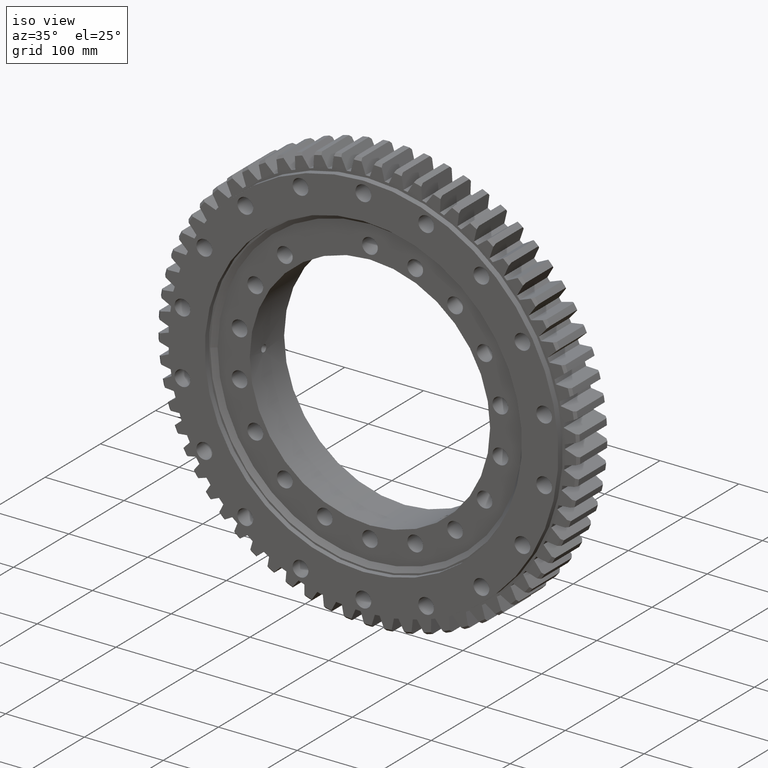
[diagram: clean part render]
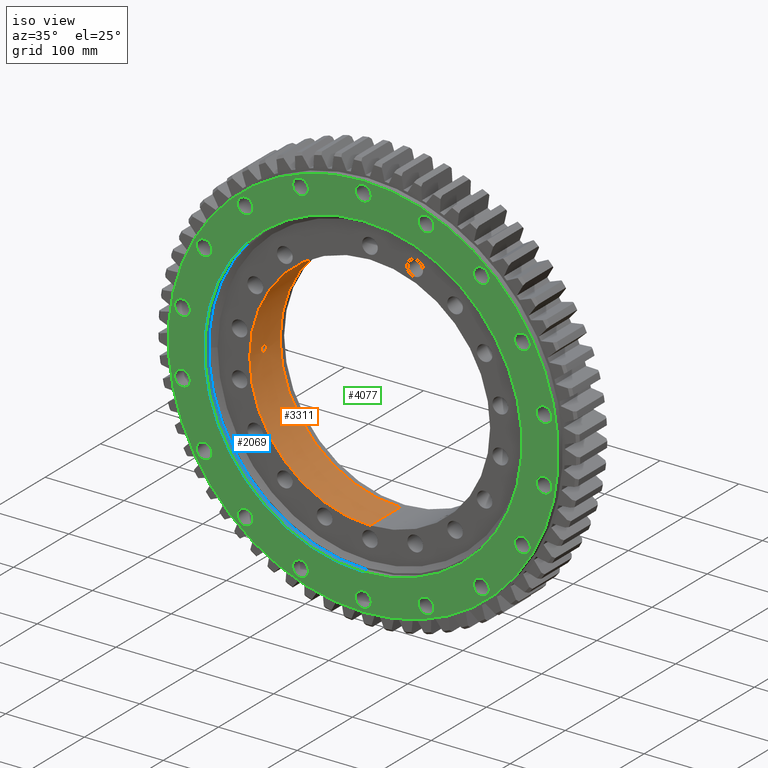
[diagram: same view with three faces highlighted in distinct colors, each labeled with its STEP entity id]
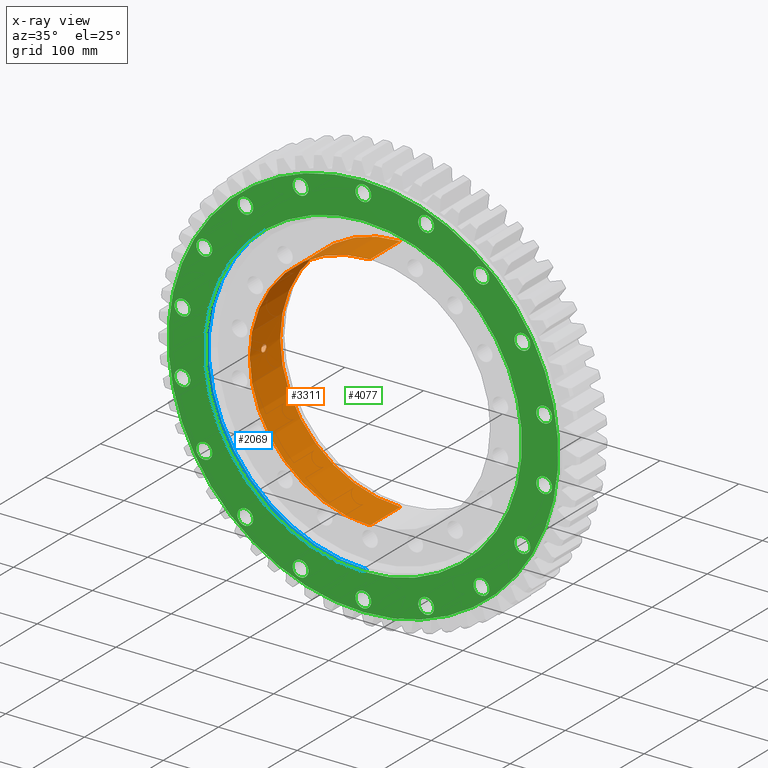
[diagram: x-ray of the same camera — body ghosted, the three highlighted faces saturated]
A machine part, iso view with three faces highlighted in distinct colors.
The next image is the same camera in x-ray (body ghosted, the three faces saturated) — at least one of them is partly hidden behind the body in this view.
Their STEP definitions:

[orange] entity #3311 — the highlighted cylindrical surface (partial cylindrical patch) has radius 152.5 mm, axis along (-0, 1, -0).
#205 = CARTESIAN_POINT ( 'NONE',  ( -152.4991463681368500, 4.471350611373478200, -0.5871406986109500800 ) ) ;
#276 = CARTESIAN_POINT ( 'NONE',  ( -152.4402366112303500, 1.449170517260515400, 4.270483248026321700 ) ) ;
#371 = CARTESIAN_POINT ( 'NONE',  ( -152.4582054614069500, -2.750386111445692400, -3.573883908414920500 ) ) ;
#427 = CARTESIAN_POINT ( 'NONE',  ( -152.4625123445400400, -2.976696863406556900, -3.387557135085292400 ) ) ;
#495 = CARTESIAN_POINT ( 'NONE',  ( -152.4933811505130200, -4.271301954763126600, -1.446783939584317200 ) ) ;
#813 = CARTESIAN_POINT ( 'NONE',  ( -152.4624238084217600, -2.972161365393607200, 3.391505917873999000 ) ) ;
#1213 = EDGE_CURVE ( 'NONE', #15459, #10234, #10272, .T. ) ;
#1268 = CARTESIAN_POINT ( 'NONE',  ( -152.4335920983297700, -0.2936365429435594500, 4.500000000001427300 ) ) ;
#1445 = CARTESIAN_POINT ( 'NONE',  ( 0.0000000000000000000, -25.50000000000001400, -1.507822983736319100E-016 ) ) ;
#1531 = VERTEX_POINT ( 'NONE', #6613 ) ;
#1634 = CARTESIAN_POINT ( 'NONE',  ( -152.4335920983297700, 2.328878195137327500E-009, 4.500000000001426400 ) ) ;
#1666 = CARTESIAN_POINT ( 'NONE',  ( -152.4999926309642400, -4.499750269149170200, 0.3005037219943778000 ) ) ;
#1697 = CARTESIAN_POINT ( 'NONE',  ( -152.5000030671672800, 4.500103945228436200, 0.2919261183107986800 ) ) ;
#1729 = CARTESIAN_POINT ( 'NONE',  ( -152.4958472268435800, -4.357368425672517800, -1.161569437411530200 ) ) ;
#1759 = CARTESIAN_POINT ( 'NONE',  ( -152.4344689300421900, 0.5919812696142561200, 4.470569588455800800 ) ) ;
#1862 = CARTESIAN_POINT ( 'NONE',  ( -152.5000072761718000, -4.500246579133802000, -0.2929773005388063300 ) ) ;
#1866 = DIRECTION ( 'NONE',  ( -0.0000000000000000000, 1.000000000000000000, -2.727064569436389400E-017 ) ) ;
#2042 = CARTESIAN_POINT ( 'NONE',  ( -152.4991198336882700, -4.470440428078159600, 0.5925920918783675900 ) ) ;
#2119 = DIRECTION ( 'NONE',  ( -0.0000000000000000000, 1.000000000000000000, -2.727064569436389400E-017 ) ) ;
#2196 = B_SPLINE_CURVE_WITH_KNOTS ( 'NONE', 3,
 ( #10019, #1268, #4221, #16235, #6021, #8161, #7487, #6582, #813, #3442, #12534, #3753, #11910, #18314, #9577, #2042, #1666, #1862, #7792, #1729, #495, #16858, #18003, #14899, #10683, #427, #371, #14965, #17890, #15022, #4797, #13580, #12096, #3320 ),
 .UNSPECIFIED., .F., .F.,
 ( 4, 2, 2, 2, 2, 2, 2, 2, 2, 2, 2, 2, 2, 2, 2, 2, 4 ),
 ( 0.01406981979965472500, 0.01494898441356953600, 0.01582814902748434800, 0.01670731364139915700, 0.01758647825531396700, 0.01846564286922877700, 0.01934480748314359000, 0.02022397209705839900, 0.02110313671097321200, 0.02198230132488802200, 0.02286146593880283200, 0.02374063055271764100, 0.02461979516663245400, 0.02549895978054726400, 0.02637812439446207700, 0.02725728900837688700, 0.02813645362229169600 ),
 .UNSPECIFIED. ) ;
#2485 = VECTOR ( 'NONE', #4945, 1000.000000000000000 ) ;
#2511 = CARTESIAN_POINT ( 'NONE',  ( -152.4335920983299100, 0.2973428317451584100, -4.499999999998539800 ) ) ;
#2899 = DIRECTION ( 'NONE',  ( 0.0000000000000000000, 2.275047181608927400E-017, 1.000000000000000000 ) ) ;
#3012 = CYLINDRICAL_SURFACE ( 'NONE', #7996, 152.5000000000000000 ) ;
#3157 = CARTESIAN_POINT ( 'NONE',  ( -152.4958059519746000, 4.355930588581143700, 1.167242638344313700 ) ) ;
#3223 = ORIENTED_EDGE ( 'NONE', *, *, #3663, .F. ) ;
#3305 = DIRECTION ( 'NONE',  ( 0.0000000000000000000, 0.0000000000000000000, 1.000000000000000000 ) ) ;
#3311 = ADVANCED_FACE ( 'NONE', ( #18558, #3465 ), #3012, .F. ) ;
#3320 = CARTESIAN_POINT ( 'NONE',  ( -152.4335920983298800, 2.328877396505309900E-009, -4.499999999998539800 ) ) ;
#3442 = CARTESIAN_POINT ( 'NONE',  ( -152.4710819855604900, -3.387316266409080300, 2.976935350708351400 ) ) ;
#3465 = FACE_OUTER_BOUND ( 'NONE', #13028, .T. ) ;
#3663 = EDGE_CURVE ( 'NONE', #15308, #8700, #2196, .T. ) ;
#3741 = CARTESIAN_POINT ( 'NONE',  ( 1.867586368699713500E-014, 29.49999999999997200, -152.5000000000000000 ) ) ;
#3753 = CARTESIAN_POINT ( 'NONE',  ( -152.4835029282025400, -3.904536432834663900, 2.256371344333844200 ) ) ;
#3933 = EDGE_LOOP ( 'NONE', ( #12758, #3223 ) ) ;
#4221 = CARTESIAN_POINT ( 'NONE',  ( -152.4344406030474200, -0.5854773802903791000, 4.471535469184562600 ) ) ;
#4647 = CARTESIAN_POINT ( 'NONE',  ( -152.4872245164826300, 4.045532425552232200, 1.992632940017228900 ) ) ;
#4797 = CARTESIAN_POINT ( 'NONE',  ( -152.4378321995201600, -1.173634041076803600, -4.354389357246622800 ) ) ;
#4945 = DIRECTION ( 'NONE',  ( -0.0000000000000000000, 1.000000000000000000, -2.727064569436389400E-017 ) ) ;
#5267 = CIRCLE ( 'NONE', #8544, 152.5000000000000000 ) ;
#5715 = B_SPLINE_CURVE_WITH_KNOTS ( 'NONE', 3,
 ( #12765, #2511, #6946, #17162, #8397, #18607, #15493, #6750, #16968, #8203, #18415, #9672, #7515, #17736, #8976, #205, #10460, #1697, #11944, #3157, #13427, #4647, #10401, #14861, #6113, #16328, #7580, #17793, #9038, #276, #10535, #1759, #12007, #1634 ),
 .UNSPECIFIED., .F., .F.,
 ( 4, 2, 2, 2, 2, 2, 2, 2, 2, 2, 2, 2, 2, 2, 2, 2, 4 ),
 ( 3.840739077915815100E-019, 0.0008793637374784217300, 0.001758727474956842600, 0.002638091212435263400, 0.003517454949913683900, 0.004396818687392104400, 0.005276182424870525800, 0.006155546162348947200, 0.007034909899827366900, 0.007914273637305787500, 0.008793637374784207100, 0.009673001112262626800, 0.01055236484974104500, 0.01143172858721946600, 0.01231109232469788600, 0.01319045606217630500, 0.01406981979965472500 ),
 .UNSPECIFIED. ) ;
#6021 = CARTESIAN_POINT ( 'NONE',  ( -152.4402473020581400, -1.449934536375633700, 4.270078292203028700 ) ) ;
#6101 = CARTESIAN_POINT ( 'NONE',  ( 0.0000000000000000000, 29.49999999999997200, -1.650667811563645600E-015 ) ) ;
#6113 = CARTESIAN_POINT ( 'NONE',  ( -152.4711991203924400, 3.392733562319130600, 2.971127550668597000 ) ) ;
#6481 = ORIENTED_EDGE ( 'NONE', *, *, #13990, .F. ) ;
#6582 = CARTESIAN_POINT ( 'NONE',  ( -152.4581150942963700, -2.745461392648008000, 3.577741484899487300 ) ) ;
#6613 = CARTESIAN_POINT ( 'NONE',  ( 0.0000000000000000000, -25.50000000000001100, 152.5000000000000000 ) ) ;
#6750 = CARTESIAN_POINT ( 'NONE',  ( -152.4580809401748800, 2.743401880858387100, -3.579140027295670400 ) ) ;
#6946 = CARTESIAN_POINT ( 'NONE',  ( -152.4344614895947200, 0.5897130801298982000, -4.470818854460795900 ) ) ;
#7378 = CIRCLE ( 'NONE', #12614, 152.5000000000000000 ) ;
#7469 = ORIENTED_EDGE ( 'NONE', *, *, #1213, .T. ) ;
#7487 = CARTESIAN_POINT ( 'NONE',  ( -152.4500367951045200, -2.252647105919821000, 3.906836752384194300 ) ) ;
#7515 = CARTESIAN_POINT ( 'NONE',  ( -152.4872133848707600, 4.045098719662562700, -1.993260217314738500 ) ) ;
#7556 = CARTESIAN_POINT ( 'NONE',  ( -152.4335920983298800, 2.328877396505309900E-009, -4.499999999998539800 ) ) ;
#7580 = CARTESIAN_POINT ( 'NONE',  ( -152.4581107054141900, 2.744976713661275300, 3.577855495823500500 ) ) ;
#7594 = EDGE_CURVE ( 'NONE', #17245, #10234, #5267, .T. ) ;
#7792 = CARTESIAN_POINT ( 'NONE',  ( -152.4991430332332200, -4.471226233845782400, -0.5865484807040894900 ) ) ;
#7996 = AXIS2_PLACEMENT_3D ( 'NONE', #16810, #2119, #9462 ) ;
#8161 = CARTESIAN_POINT ( 'NONE',  ( -152.4463602077788900, -1.991495228336237700, 4.045964104426626100 ) ) ;
#8203 = CARTESIAN_POINT ( 'NONE',  ( -152.4711439957412400, 3.390104877264848300, -2.973781563816476000 ) ) ;
#8397 = CARTESIAN_POINT ( 'NONE',  ( -152.4402517966541400, 1.450729198927594300, -4.269941704099050400 ) ) ;
#8544 = AXIS2_PLACEMENT_3D ( 'NONE', #6101, #12078, #3305 ) ;
#8700 = VERTEX_POINT ( 'NONE', #7556 ) ;
#8727 = LINE ( 'NONE', #13587, #12187 ) ;
#8976 = CARTESIAN_POINT ( 'NONE',  ( -152.4958030631115400, 4.355833461252584200, -1.168086189922329200 ) ) ;
#9038 = CARTESIAN_POINT ( 'NONE',  ( -152.4463970493678200, 1.994575252088862400, 4.044600341945468400 ) ) ;
#9462 = DIRECTION ( 'NONE',  ( 0.0000000000000000000, 2.275047181608927400E-017, 1.000000000000000000 ) ) ;
#9577 = CARTESIAN_POINT ( 'NONE',  ( -152.4957998956882900, -4.355717322981801600, 1.167788341766336600 ) ) ;
#9672 = CARTESIAN_POINT ( 'NONE',  ( -152.4835223025270400, 3.905331024335231000, -2.255206572043559500 ) ) ;
#9691 = ORIENTED_EDGE ( 'NONE', *, *, #7594, .F. ) ;
#10019 = CARTESIAN_POINT ( 'NONE',  ( -152.4335920983297700, 2.328878195137327500E-009, 4.500000000001426400 ) ) ;
#10120 = CARTESIAN_POINT ( 'NONE',  ( -152.4335920983297700, 2.328878195137327500E-009, 4.500000000001426400 ) ) ;
#10234 = VERTEX_POINT ( 'NONE', #3741 ) ;
#10272 = LINE ( 'NONE', #15171, #2485 ) ;
#10401 = CARTESIAN_POINT ( 'NONE',  ( -152.4835045791207300, 3.904573635158176800, 2.256169810011611900 ) ) ;
#10460 = CARTESIAN_POINT ( 'NONE',  ( -152.4999969160900000, 4.499895492040504800, -0.2951219021411824500 ) ) ;
#10535 = CARTESIAN_POINT ( 'NONE',  ( -152.4377989119800500, 1.168614980020482100, 4.355545120872621500 ) ) ;
#10644 = EDGE_CURVE ( 'NONE', #8700, #15308, #5715, .T. ) ;
#10683 = CARTESIAN_POINT ( 'NONE',  ( -152.4711811738319500, -3.391775692635567600, -2.971889164991660800 ) ) ;
#11681 = DIRECTION ( 'NONE',  ( -0.0000000000000000000, 1.000000000000000000, -2.727064569436389400E-017 ) ) ;
#11910 = CARTESIAN_POINT ( 'NONE',  ( -152.4871531609047100, -4.042849930973923200, 1.998034363940799800 ) ) ;
#11944 = CARTESIAN_POINT ( 'NONE',  ( -152.4991315384717700, 4.470840898411061000, 0.5900579047306082600 ) ) ;
#12007 = CARTESIAN_POINT ( 'NONE',  ( -152.4335920983297700, 0.2937030538668932700, 4.500000000001426400 ) ) ;
#12078 = DIRECTION ( 'NONE',  ( 0.0000000000000000000, -1.000000000000000000, 0.0000000000000000000 ) ) ;
#12096 = CARTESIAN_POINT ( 'NONE',  ( -152.4335920983298800, -0.2972754966287048900, -4.499999999998538900 ) ) ;
#12187 = VECTOR ( 'NONE', #1866, 1000.000000000000000 ) ;
#12534 = CARTESIAN_POINT ( 'NONE',  ( -152.4754767325176800, -3.577393507886717000, 2.745700655592425500 ) ) ;
#12614 = AXIS2_PLACEMENT_3D ( 'NONE', #1445, #11681, #2899 ) ;
#12758 = ORIENTED_EDGE ( 'NONE', *, *, #10644, .F. ) ;
#12765 = CARTESIAN_POINT ( 'NONE',  ( -152.4335920983298800, 2.328877396505309900E-009, -4.499999999998539800 ) ) ;
#12984 = ORIENTED_EDGE ( 'NONE', *, *, #13133, .F. ) ;
#13028 = EDGE_LOOP ( 'NONE', ( #12984, #7469, #9691, #6481 ) ) ;
#13133 = EDGE_CURVE ( 'NONE', #15459, #1531, #7378, .T. ) ;
#13427 = CARTESIAN_POINT ( 'NONE',  ( -152.4933709118018300, 4.270932440512647000, 1.447775787013437600 ) ) ;
#13572 = CARTESIAN_POINT ( 'NONE',  ( 0.0000000000000000000, 29.49999999999997200, 152.5000000000000000 ) ) ;
#13580 = CARTESIAN_POINT ( 'NONE',  ( -152.4344616028239400, -0.5914518736461035200, -4.470828583243702200 ) ) ;
#13587 = CARTESIAN_POINT ( 'NONE',  ( 0.0000000000000000000, 31.02910628019324700, 152.5000000000000000 ) ) ;
#13990 = EDGE_CURVE ( 'NONE', #1531, #17245, #8727, .T. ) ;
#14861 = CARTESIAN_POINT ( 'NONE',  ( -152.4755089395020200, 3.578736215521887600, 2.743837564830434500 ) ) ;
#14899 = CARTESIAN_POINT ( 'NONE',  ( -152.4755775612493400, -3.581659222133234200, -2.740078449097262500 ) ) ;
#14965 = CARTESIAN_POINT ( 'NONE',  ( -152.4501407050217400, -2.259560185670742800, -3.902775643369496000 ) ) ;
#15022 = CARTESIAN_POINT ( 'NONE',  ( -152.4403035892809700, -1.455813674671011700, -4.268078342830100300 ) ) ;
#15171 = CARTESIAN_POINT ( 'NONE',  ( 1.867586368699713500E-014, 31.02910628019324000, -152.5000000000000000 ) ) ;
#15308 = VERTEX_POINT ( 'NONE', #10120 ) ;
#15459 = VERTEX_POINT ( 'NONE', #17010 ) ;
#15493 = CARTESIAN_POINT ( 'NONE',  ( -152.4500628889480300, 2.254214887922842500, -3.905766563899336400 ) ) ;
#16235 = CARTESIAN_POINT ( 'NONE',  ( -152.4377718037980300, -1.165493158689383100, 4.356493878034664000 ) ) ;
#16328 = CARTESIAN_POINT ( 'NONE',  ( -152.4624317426921000, 2.972738250776522300, 3.391322343517714400 ) ) ;
#16810 = CARTESIAN_POINT ( 'NONE',  ( 0.0000000000000000000, 31.02910628019324300, -1.692367527159823000E-015 ) ) ;
#16858 = CARTESIAN_POINT ( 'NONE',  ( -152.4872262405751800, -4.045601589200859200, -1.992564161854958300 ) ) ;
#16968 = CARTESIAN_POINT ( 'NONE',  ( -152.4624791627376500, 2.974997841187748500, -3.389037578891976700 ) ) ;
#17010 = CARTESIAN_POINT ( 'NONE',  ( 1.867586368699713500E-014, -25.50000000000001800, -152.5000000000000000 ) ) ;
#17162 = CARTESIAN_POINT ( 'NONE',  ( -152.4377719518524300, 1.164916109338948600, -4.356484041880637600 ) ) ;
#17245 = VERTEX_POINT ( 'NONE', #13572 ) ;
#17736 = CARTESIAN_POINT ( 'NONE',  ( -152.4933307050521600, 4.269483257978975200, -1.451696475379878900 ) ) ;
#17793 = CARTESIAN_POINT ( 'NONE',  ( -152.4501138373444700, 2.257562028219685300, 3.903762389542614600 ) ) ;
#17890 = CARTESIAN_POINT ( 'NONE',  ( -152.4464336259754000, -1.997087964910179400, -4.043207372097604900 ) ) ;
#18003 = CARTESIAN_POINT ( 'NONE',  ( -152.4835800202039300, -3.907519152013141400, -2.251134550805897700 ) ) ;
#18314 = CARTESIAN_POINT ( 'NONE',  ( -152.4933116325325400, -4.268822917716244400, 1.453935273658863300 ) ) ;
#18415 = CARTESIAN_POINT ( 'NONE',  ( -152.4754518834358000, 3.576375774547096300, -2.747199193710094800 ) ) ;
#18558 = FACE_BOUND ( 'NONE', #3933, .T. ) ;
#18607 = CARTESIAN_POINT ( 'NONE',  ( -152.4464125410441700, 1.995731449381471500, -4.044016981852916400 ) ) ;

[blue] entity #2069 — the highlighted cylindrical surface (partial cylindrical patch) has radius 201.25 mm, axis along (-0, 1, -0).
#45 = VECTOR ( 'NONE', #8347, 1000.000000000000000 ) ;
#391 = CARTESIAN_POINT ( 'NONE',  ( 0.0000000000000000000, -37.50000000000001400, 0.0000000000000000000 ) ) ;
#1580 = CYLINDRICAL_SURFACE ( 'NONE', #18627, 201.2499999999999700 ) ;
#1718 = DIRECTION ( 'NONE',  ( -0.0000000000000000000, 1.000000000000000000, -0.0000000000000000000 ) ) ;
#1892 = DIRECTION ( 'NONE',  ( 0.0000000000000000000, 0.0000000000000000000, 1.000000000000000000 ) ) ;
#2027 = CIRCLE ( 'NONE', #12348, 201.2499999999999700 ) ;
#2069 = ADVANCED_FACE ( 'NONE', ( #7522 ), #1580, .F. ) ;
#2821 = VERTEX_POINT ( 'NONE', #8138 ) ;
#3072 = VERTEX_POINT ( 'NONE', #4499 ) ;
#3678 = CARTESIAN_POINT ( 'NONE',  ( 0.0000000000000000000, 22.16364734299516900, 201.2499999999999700 ) ) ;
#3707 = VECTOR ( 'NONE', #16744, 1000.000000000000000 ) ;
#4499 = CARTESIAN_POINT ( 'NONE',  ( 2.464601683284048000E-014, -37.50000000000001400, -201.2499999999999700 ) ) ;
#4950 = ORIENTED_EDGE ( 'NONE', *, *, #12732, .F. ) ;
#5133 = CARTESIAN_POINT ( 'NONE',  ( 0.0000000000000000000, -37.50000000000001400, 201.2499999999999700 ) ) ;
#5152 = ORIENTED_EDGE ( 'NONE', *, *, #17183, .T. ) ;
#5561 = CARTESIAN_POINT ( 'NONE',  ( 0.0000000000000000000, -30.54999999999999400, 201.2499999999999700 ) ) ;
#6561 = VERTEX_POINT ( 'NONE', #5133 ) ;
#7522 = FACE_OUTER_BOUND ( 'NONE', #12893, .T. ) ;
#7606 = LINE ( 'NONE', #12424, #3707 ) ;
#8138 = CARTESIAN_POINT ( 'NONE',  ( 2.464601683284048000E-014, -30.54999999999999400, -201.2499999999999700 ) ) ;
#8347 = DIRECTION ( 'NONE',  ( -0.0000000000000000000, 1.000000000000000000, -0.0000000000000000000 ) ) ;
#9173 = DIRECTION ( 'NONE',  ( -0.0000000000000000000, 1.000000000000000000, -0.0000000000000000000 ) ) ;
#9964 = ORIENTED_EDGE ( 'NONE', *, *, #13756, .T. ) ;
#10299 = EDGE_CURVE ( 'NONE', #3072, #6561, #16580, .T. ) ;
#10483 = CARTESIAN_POINT ( 'NONE',  ( 0.0000000000000000000, -30.54999999999999400, 0.0000000000000000000 ) ) ;
#11966 = DIRECTION ( 'NONE',  ( 0.0000000000000000000, 0.0000000000000000000, 1.000000000000000000 ) ) ;
#12348 = AXIS2_PLACEMENT_3D ( 'NONE', #10483, #1718, #11966 ) ;
#12424 = CARTESIAN_POINT ( 'NONE',  ( 2.464601683284048000E-014, 22.16364734299516900, -201.2499999999999700 ) ) ;
#12732 = EDGE_CURVE ( 'NONE', #6561, #15968, #15620, .T. ) ;
#12893 = EDGE_LOOP ( 'NONE', ( #15246, #9964, #5152, #4950 ) ) ;
#13756 = EDGE_CURVE ( 'NONE', #3072, #2821, #7606, .T. ) ;
#14988 = DIRECTION ( 'NONE',  ( 0.0000000000000000000, 0.0000000000000000000, 1.000000000000000000 ) ) ;
#15176 = DIRECTION ( 'NONE',  ( -0.0000000000000000000, 1.000000000000000000, -0.0000000000000000000 ) ) ;
#15246 = ORIENTED_EDGE ( 'NONE', *, *, #10299, .F. ) ;
#15255 = AXIS2_PLACEMENT_3D ( 'NONE', #391, #9173, #1892 ) ;
#15620 = LINE ( 'NONE', #3678, #45 ) ;
#15968 = VERTEX_POINT ( 'NONE', #5561 ) ;
#16580 = CIRCLE ( 'NONE', #15255, 201.2499999999999700 ) ;
#16744 = DIRECTION ( 'NONE',  ( -0.0000000000000000000, 1.000000000000000000, -0.0000000000000000000 ) ) ;
#17183 = EDGE_CURVE ( 'NONE', #2821, #15968, #2027, .T. ) ;
#18621 = CARTESIAN_POINT ( 'NONE',  ( 0.0000000000000000000, 22.16364734299516900, 0.0000000000000000000 ) ) ;
#18627 = AXIS2_PLACEMENT_3D ( 'NONE', #18621, #15176, #14988 ) ;

[green] entity #4077 — the highlighted planar face has unit normal (-0, 1, 0).
#70 = DIRECTION ( 'NONE',  ( 0.0000000000000000000, 1.000000000000000000, 0.0000000000000000000 ) ) ;
#144 = VERTEX_POINT ( 'NONE', #2115 ) ;
#169 = ORIENTED_EDGE ( 'NONE', *, *, #13476, .T. ) ;
#220 = ORIENTED_EDGE ( 'NONE', *, *, #17543, .T. ) ;
#226 = FACE_BOUND ( 'NONE', #14933, .T. ) ;
#281 = EDGE_CURVE ( 'NONE', #5196, #5061, #11923, .T. ) ;
#338 = ORIENTED_EDGE ( 'NONE', *, *, #9146, .T. ) ;
#344 = CARTESIAN_POINT ( 'NONE',  ( 0.0000000000000000000, -37.50000000000002100, 0.0000000000000000000 ) ) ;
#391 = CARTESIAN_POINT ( 'NONE',  ( 0.0000000000000000000, -37.50000000000001400, 0.0000000000000000000 ) ) ;
#406 = EDGE_LOOP ( 'NONE', ( #17452, #6726 ) ) ;
#543 = EDGE_LOOP ( 'NONE', ( #11882, #9933 ) ) ;
#610 = DIRECTION ( 'NONE',  ( 0.3420201433256569400, 0.0000000000000000000, 0.9396926207859125400 ) ) ;
#632 = CARTESIAN_POINT ( 'NONE',  ( 3.386180225106727400E-012, -37.50000000000002100, 243.0000000000000300 ) ) ;
#658 = EDGE_LOOP ( 'NONE', ( #3920, #16469 ) ) ;
#676 = DIRECTION ( 'NONE',  ( 0.0000000000000000000, 1.000000000000000000, 0.0000000000000000000 ) ) ;
#692 = FACE_BOUND ( 'NONE', #1474, .T. ) ;
#746 = DIRECTION ( 'NONE',  ( 0.0000000000000000000, 1.000000000000000000, 0.0000000000000000000 ) ) ;
#833 = CARTESIAN_POINT ( 'NONE',  ( 0.0000000000000000000, -37.50000000000002100, 0.0000000000000000000 ) ) ;
#840 = ORIENTED_EDGE ( 'NONE', *, *, #14440, .T. ) ;
#861 = CARTESIAN_POINT ( 'NONE',  ( 201.7839190817745700, -37.50000000000002100, 116.4999999999994500 ) ) ;
#908 = CARTESIAN_POINT ( 'NONE',  ( 79.69069339487929000, -37.50000000000002100, -228.9483806431172500 ) ) ;
#948 = AXIS2_PLACEMENT_3D ( 'NONE', #4795, #15146, #13642 ) ;
#962 = DIRECTION ( 'NONE',  ( -0.9848077530122073500, 0.0000000000000000000, -0.1736481776669344100 ) ) ;
#967 = DIRECTION ( 'NONE',  ( 0.9848077530122063500, 0.0000000000000000000, 0.1736481776669404600 ) ) ;
#1068 = DIRECTION ( 'NONE',  ( 0.0000000000000000000, 1.000000000000000000, 0.0000000000000000000 ) ) ;
#1090 = AXIS2_PLACEMENT_3D ( 'NONE', #16241, #6027, #4555 ) ;
#1098 = EDGE_CURVE ( 'NONE', #18507, #13229, #8661, .T. ) ;
#1113 = EDGE_CURVE ( 'NONE', #6541, #16841, #18490, .T. ) ;
#1122 = ORIENTED_EDGE ( 'NONE', *, *, #16927, .T. ) ;
#1207 = CARTESIAN_POINT ( 'NONE',  ( 149.7695130569625800, -37.50000000000002100, -188.4883552467228200 ) ) ;
#1209 = CIRCLE ( 'NONE', #18704, 9.999999999999969800 ) ;
#1284 = AXIS2_PLACEMENT_3D ( 'NONE', #15610, #6881, #17089 ) ;
#1302 = DIRECTION ( 'NONE',  ( 0.8660254037844430400, 0.0000000000000000000, -0.4999999999999925600 ) ) ;
#1331 = CIRCLE ( 'NONE', #10030, 9.999999999999964500 ) ;
#1379 = CARTESIAN_POINT ( 'NONE',  ( 149.7695130569625800, -37.50000000000002100, -178.4883552467228200 ) ) ;
#1423 = DIRECTION ( 'NONE',  ( -0.9848077530122086900, 0.0000000000000000000, 0.1736481776669271700 ) ) ;
#1474 = EDGE_LOOP ( 'NONE', ( #338, #16422 ) ) ;
#1532 = CARTESIAN_POINT ( 'NONE',  ( -149.7695130569613900, -37.50000000000002100, 188.4883552467238700 ) ) ;
#1539 = AXIS2_PLACEMENT_3D ( 'NONE', #7264, #18802, #13035 ) ;
#1665 = CARTESIAN_POINT ( 'NONE',  ( 149.7695130569625800, -37.50000000000002100, -168.4883552467228500 ) ) ;
#1696 = DIRECTION ( 'NONE',  ( 0.6427876096865450300, 0.0000000000000000000, -0.7660444431189733500 ) ) ;
#1701 = ORIENTED_EDGE ( 'NONE', *, *, #16894, .T. ) ;
#1805 = DIRECTION ( 'NONE',  ( 0.0000000000000000000, 1.000000000000000000, 0.0000000000000000000 ) ) ;
#1892 = DIRECTION ( 'NONE',  ( 0.0000000000000000000, 0.0000000000000000000, 1.000000000000000000 ) ) ;
#1942 = DIRECTION ( 'NONE',  ( 0.0000000000000000000, 0.0000000000000000000, 1.000000000000000000 ) ) ;
#1965 = CARTESIAN_POINT ( 'NONE',  ( -79.69069339488268600, -37.50000000000002100, -228.9483806431160500 ) ) ;
#1991 = EDGE_LOOP ( 'NONE', ( #3281, #15814 ) ) ;
#2099 = DIRECTION ( 'NONE',  ( 0.3420201433256756000, 0.0000000000000000000, -0.9396926207859058700 ) ) ;
#2115 = CARTESIAN_POINT ( 'NONE',  ( -149.7695130569653400, -37.50000000000002100, -188.4883552467204900 ) ) ;
#2161 = AXIS2_PLACEMENT_3D ( 'NONE', #833, #12185, #1942 ) ;
#2172 = CARTESIAN_POINT ( 'NONE',  ( 79.69069339487929000, -37.50000000000002100, -208.9483806431173000 ) ) ;
#2184 = CIRCLE ( 'NONE', #4385, 9.999999999999964500 ) ;
#2254 = EDGE_LOOP ( 'NONE', ( #4452, #16741 ) ) ;
#2261 = ORIENTED_EDGE ( 'NONE', *, *, #281, .T. ) ;
#2350 = CIRCLE ( 'NONE', #17905, 9.999999999999980500 ) ;
#2402 = CARTESIAN_POINT ( 'NONE',  ( -201.7839190817728100, -37.50000000000002100, 116.5000000000024700 ) ) ;
#2453 = AXIS2_PLACEMENT_3D ( 'NONE', #18453, #9701, #962 ) ;
#2466 = CARTESIAN_POINT ( 'NONE',  ( 229.4602064518443300, -37.50000000000002100, -50.46002539639584900 ) ) ;
#2477 = DIRECTION ( 'NONE',  ( 0.0000000000000000000, 1.000000000000000000, 0.0000000000000000000 ) ) ;
#2587 = VERTEX_POINT ( 'NONE', #1665 ) ;
#2615 = EDGE_CURVE ( 'NONE', #18159, #3925, #9664, .T. ) ;
#2640 = EDGE_LOOP ( 'NONE', ( #9825, #840 ) ) ;
#2650 = EDGE_CURVE ( 'NONE', #16461, #3473, #2350, .T. ) ;
#2652 = VERTEX_POINT ( 'NONE', #9209 ) ;
#2754 = FACE_BOUND ( 'NONE', #13966, .T. ) ;
#2844 = VERTEX_POINT ( 'NONE', #11605 ) ;
#2997 = CIRCLE ( 'NONE', #2453, 9.999999999999966200 ) ;
#3072 = VERTEX_POINT ( 'NONE', #4499 ) ;
#3154 = CARTESIAN_POINT ( 'NONE',  ( 149.7695130569625800, -37.50000000000002100, -178.4883552467228200 ) ) ;
#3155 = CIRCLE ( 'NONE', #12969, 9.999999999999969800 ) ;
#3206 = FACE_BOUND ( 'NONE', #10843, .T. ) ;
#3253 = CARTESIAN_POINT ( 'NONE',  ( 3.386180225106727400E-012, -37.50000000000002100, 233.0000000000000300 ) ) ;
#3281 = ORIENTED_EDGE ( 'NONE', *, *, #13712, .T. ) ;
#3473 = VERTEX_POINT ( 'NONE', #6993 ) ;
#3509 = CARTESIAN_POINT ( 'NONE',  ( 201.7839190817736300, -37.50000000000002100, -116.5000000000010800 ) ) ;
#3571 = CARTESIAN_POINT ( 'NONE',  ( 229.4602064518446700, -37.50000000000002100, 50.46002539639377500 ) ) ;
#3667 = FACE_BOUND ( 'NONE', #2254, .T. ) ;
#3685 = CARTESIAN_POINT ( 'NONE',  ( -79.69069339487781200, -37.50000000000002100, 218.9483806431177900 ) ) ;
#3762 = DIRECTION ( 'NONE',  ( 0.0000000000000000000, 1.000000000000000000, 0.0000000000000000000 ) ) ;
#3803 = CIRCLE ( 'NONE', #11721, 9.999999999999971600 ) ;
#3873 = DIRECTION ( 'NONE',  ( -0.8660254037844399300, 0.0000000000000000000, 0.4999999999999977800 ) ) ;
#3919 = CARTESIAN_POINT ( 'NONE',  ( -79.69069339487781200, -37.50000000000002100, 218.9483806431177900 ) ) ;
#3920 = ORIENTED_EDGE ( 'NONE', *, *, #8555, .T. ) ;
#3925 = VERTEX_POINT ( 'NONE', #5474 ) ;
#3981 = VERTEX_POINT ( 'NONE', #2466 ) ;
#4077 = ADVANCED_FACE ( 'NONE', ( #692, #11929, #4139, #4604, #226, #8016, #11471, #7567, #3667, #18747, #14883, #10991, #7118, #3206, #18289, #14444, #10555, #6656, #2754, #17841 ), #5296, .F. ) ;
#4126 = DIRECTION ( 'NONE',  ( 0.0000000000000000000, 1.000000000000000000, 0.0000000000000000000 ) ) ;
#4139 = FACE_BOUND ( 'NONE', #8142, .T. ) ;
#4264 = DIRECTION ( 'NONE',  ( 0.0000000000000000000, 1.000000000000000000, 0.0000000000000000000 ) ) ;
#4331 = CIRCLE ( 'NONE', #10739, 9.999999999999976900 ) ;
#4353 = ORIENTED_EDGE ( 'NONE', *, *, #9931, .T. ) ;
#4385 = AXIS2_PLACEMENT_3D ( 'NONE', #18794, #10062, #1302 ) ;
#4394 = DIRECTION ( 'NONE',  ( 0.0000000000000000000, 1.000000000000000000, 0.0000000000000000000 ) ) ;
#4452 = ORIENTED_EDGE ( 'NONE', *, *, #17854, .T. ) ;
#4499 = CARTESIAN_POINT ( 'NONE',  ( 2.464601683284048000E-014, -37.50000000000001400, -201.2499999999999700 ) ) ;
#4555 = DIRECTION ( 'NONE',  ( 0.9848077530122096900, 0.0000000000000000000, -0.1736481776669211200 ) ) ;
#4567 = ORIENTED_EDGE ( 'NONE', *, *, #5582, .T. ) ;
#4604 = FACE_BOUND ( 'NONE', #2640, .T. ) ;
#4686 = EDGE_LOOP ( 'NONE', ( #11023, #18039 ) ) ;
#4738 = DIRECTION ( 'NONE',  ( 0.0000000000000000000, 0.0000000000000000000, 1.000000000000000000 ) ) ;
#4792 = EDGE_CURVE ( 'NONE', #3473, #16461, #18947, .T. ) ;
#4795 = CARTESIAN_POINT ( 'NONE',  ( -149.7695130569653400, -37.50000000000002100, -178.4883552467205200 ) ) ;
#4877 = EDGE_CURVE ( 'NONE', #6487, #12103, #9358, .T. ) ;
#4919 = ORIENTED_EDGE ( 'NONE', *, *, #1113, .T. ) ;
#4955 = VERTEX_POINT ( 'NONE', #16411 ) ;
#4990 = DIRECTION ( 'NONE',  ( 0.8660254037844430400, 0.0000000000000000000, -0.4999999999999925600 ) ) ;
#5008 = AXIS2_PLACEMENT_3D ( 'NONE', #16307, #6086, #13400 ) ;
#5061 = VERTEX_POINT ( 'NONE', #17857 ) ;
#5085 = EDGE_CURVE ( 'NONE', #5061, #5196, #6623, .T. ) ;
#5110 = DIRECTION ( 'NONE',  ( 0.0000000000000000000, 1.000000000000000000, 0.0000000000000000000 ) ) ;
#5122 = AXIS2_PLACEMENT_3D ( 'NONE', #10418, #11894, #7471 ) ;
#5133 = CARTESIAN_POINT ( 'NONE',  ( 0.0000000000000000000, -37.50000000000001400, 201.2499999999999700 ) ) ;
#5196 = VERTEX_POINT ( 'NONE', #10803 ) ;
#5206 = AXIS2_PLACEMENT_3D ( 'NONE', #10584, #1068, #8371 ) ;
#5249 = VERTEX_POINT ( 'NONE', #18932 ) ;
#5268 = ORIENTED_EDGE ( 'NONE', *, *, #13179, .T. ) ;
#5296 = PLANE ( 'NONE',  #16099 ) ;
#5315 = CIRCLE ( 'NONE', #5008, 9.999999999999985800 ) ;
#5399 = CIRCLE ( 'NONE', #8396, 9.999999999999980500 ) ;
#5474 = CARTESIAN_POINT ( 'NONE',  ( 3.387404871905874600E-012, -37.50000000000002100, 223.0000000000000600 ) ) ;
#5582 = EDGE_CURVE ( 'NONE', #2587, #10926, #15739, .T. ) ;
#5598 = EDGE_CURVE ( 'NONE', #11692, #16621, #14830, .T. ) ;
#5609 = CARTESIAN_POINT ( 'NONE',  ( 229.4602064518446700, -37.50000000000002100, 30.46002539639381400 ) ) ;
#5752 = EDGE_CURVE ( 'NONE', #6162, #12059, #16873, .T. ) ;
#5832 = EDGE_LOOP ( 'NONE', ( #1122, #4919 ) ) ;
#5886 = DIRECTION ( 'NONE',  ( 0.3420201433256569400, 0.0000000000000000000, 0.9396926207859125400 ) ) ;
#5926 = DIRECTION ( 'NONE',  ( 0.0000000000000000000, 1.000000000000000000, 0.0000000000000000000 ) ) ;
#6027 = DIRECTION ( 'NONE',  ( 0.0000000000000000000, 1.000000000000000000, 0.0000000000000000000 ) ) ;
#6086 = DIRECTION ( 'NONE',  ( 0.0000000000000000000, 1.000000000000000000, 0.0000000000000000000 ) ) ;
#6100 = EDGE_CURVE ( 'NONE', #15341, #13489, #10349, .T. ) ;
#6124 = CIRCLE ( 'NONE', #18649, 201.2499999999999700 ) ;
#6162 = VERTEX_POINT ( 'NONE', #1965 ) ;
#6487 = VERTEX_POINT ( 'NONE', #18714 ) ;
#6511 = EDGE_CURVE ( 'NONE', #12103, #6487, #9638, .T. ) ;
#6541 = VERTEX_POINT ( 'NONE', #5609 ) ;
#6560 = AXIS2_PLACEMENT_3D ( 'NONE', #7123, #8573, #11138 ) ;
#6561 = VERTEX_POINT ( 'NONE', #5133 ) ;
#6623 = CIRCLE ( 'NONE', #9727, 9.999999999999982200 ) ;
#6656 = FACE_BOUND ( 'NONE', #1991, .T. ) ;
#6726 = ORIENTED_EDGE ( 'NONE', *, *, #4877, .T. ) ;
#6761 = CARTESIAN_POINT ( 'NONE',  ( 0.0000000000000000000, -37.50000000000002100, 201.2499999999999700 ) ) ;
#6881 = DIRECTION ( 'NONE',  ( 0.0000000000000000000, 1.000000000000000000, 0.0000000000000000000 ) ) ;
#6993 = CARTESIAN_POINT ( 'NONE',  ( -201.7839190817754200, -37.50000000000002100, -126.4999999999980200 ) ) ;
#7018 = EDGE_CURVE ( 'NONE', #16809, #14270, #13545, .T. ) ;
#7023 = CARTESIAN_POINT ( 'NONE',  ( 149.7695130569641200, -37.50000000000002100, 178.4883552467216000 ) ) ;
#7118 = FACE_BOUND ( 'NONE', #15602, .T. ) ;
#7123 = CARTESIAN_POINT ( 'NONE',  ( -229.4602064518449500, -37.50000000000002100, -40.46002539639229700 ) ) ;
#7206 = ORIENTED_EDGE ( 'NONE', *, *, #10184, .T. ) ;
#7264 = CARTESIAN_POINT ( 'NONE',  ( 149.7695130569641200, -37.50000000000002100, 178.4883552467216000 ) ) ;
#7284 = AXIS2_PLACEMENT_3D ( 'NONE', #3154, #746, #1696 ) ;
#7313 = CARTESIAN_POINT ( 'NONE',  ( -229.4602064518440700, -37.50000000000002100, 30.46002539639744100 ) ) ;
#7365 = ORIENTED_EDGE ( 'NONE', *, *, #7018, .T. ) ;
#7471 = DIRECTION ( 'NONE',  ( -0.9848077530122086900, 0.0000000000000000000, 0.1736481776669271700 ) ) ;
#7536 = DIRECTION ( 'NONE',  ( -0.0000000000000000000, 1.000000000000000000, -0.0000000000000000000 ) ) ;
#7567 = FACE_BOUND ( 'NONE', #18738, .T. ) ;
#7588 = AXIS2_PLACEMENT_3D ( 'NONE', #11263, #2477, #12735 ) ;
#7595 = CIRCLE ( 'NONE', #14211, 9.999999999999975100 ) ;
#7617 = DIRECTION ( 'NONE',  ( 0.0000000000000000000, 1.000000000000000000, 0.0000000000000000000 ) ) ;
#7733 = CARTESIAN_POINT ( 'NONE',  ( 201.7839190817745700, -37.50000000000002100, 106.4999999999994700 ) ) ;
#7904 = DIRECTION ( 'NONE',  ( 0.0000000000000000000, 1.000000000000000000, 0.0000000000000000000 ) ) ;
#7986 = CARTESIAN_POINT ( 'NONE',  ( -229.4602064518449500, -37.50000000000002100, -30.46002539639232200 ) ) ;
#8016 = FACE_BOUND ( 'NONE', #14587, .T. ) ;
#8024 = EDGE_CURVE ( 'NONE', #15351, #12076, #10520, .T. ) ;
#8142 = EDGE_LOOP ( 'NONE', ( #15604, #2261 ) ) ;
#8149 = DIRECTION ( 'NONE',  ( 0.0000000000000000000, 0.0000000000000000000, 1.000000000000000000 ) ) ;
#8258 = AXIS2_PLACEMENT_3D ( 'NONE', #9538, #1805, #5886 ) ;
#8262 = DIRECTION ( 'NONE',  ( -0.6427876096865405800, 0.0000000000000000000, 0.7660444431189769000 ) ) ;
#8371 = DIRECTION ( 'NONE',  ( -0.8660254037844361500, 0.0000000000000000000, -0.5000000000000042200 ) ) ;
#8396 = AXIS2_PLACEMENT_3D ( 'NONE', #16080, #4394, #17531 ) ;
#8472 = DIRECTION ( 'NONE',  ( 0.6427876096865299300, 0.0000000000000000000, 0.7660444431189857900 ) ) ;
#8555 = EDGE_CURVE ( 'NONE', #15856, #17907, #15287, .T. ) ;
#8573 = DIRECTION ( 'NONE',  ( 0.0000000000000000000, 1.000000000000000000, 0.0000000000000000000 ) ) ;
#8661 = CIRCLE ( 'NONE', #15065, 9.999999999999996400 ) ;
#8682 = DIRECTION ( 'NONE',  ( -0.8660254037844361500, 0.0000000000000000000, -0.5000000000000042200 ) ) ;
#8801 = EDGE_CURVE ( 'NONE', #9974, #2844, #1331, .T. ) ;
#8804 = AXIS2_PLACEMENT_3D ( 'NONE', #18124, #9380, #610 ) ;
#8835 = CARTESIAN_POINT ( 'NONE',  ( 229.4602064518443300, -37.50000000000002100, -40.46002539639587100 ) ) ;
#9040 = CARTESIAN_POINT ( 'NONE',  ( 201.7839190817745700, -37.50000000000002100, 126.4999999999994200 ) ) ;
#9121 = CIRCLE ( 'NONE', #9735, 9.999999999999982200 ) ;
#9146 = EDGE_CURVE ( 'NONE', #6561, #3072, #6124, .T. ) ;
#9173 = DIRECTION ( 'NONE',  ( -0.0000000000000000000, 1.000000000000000000, -0.0000000000000000000 ) ) ;
#9177 = CARTESIAN_POINT ( 'NONE',  ( -79.69069339488268600, -37.50000000000002100, -218.9483806431160500 ) ) ;
#9209 = CARTESIAN_POINT ( 'NONE',  ( 149.7695130569641200, -37.50000000000002100, 188.4883552467216000 ) ) ;
#9358 = CIRCLE ( 'NONE', #12082, 247.5000000000000000 ) ;
#9380 = DIRECTION ( 'NONE',  ( 0.0000000000000000000, 1.000000000000000000, 0.0000000000000000000 ) ) ;
#9440 = DIRECTION ( 'NONE',  ( 6.982962677686265100E-015, 0.0000000000000000000, -1.000000000000000000 ) ) ;
#9457 = EDGE_CURVE ( 'NONE', #12059, #6162, #16615, .T. ) ;
#9538 = CARTESIAN_POINT ( 'NONE',  ( 79.69069339488126500, -37.50000000000002100, 218.9483806431165600 ) ) ;
#9607 = CARTESIAN_POINT ( 'NONE',  ( -201.7839190817728100, -37.50000000000002100, 106.5000000000025000 ) ) ;
#9622 = DIRECTION ( 'NONE',  ( 0.0000000000000000000, 1.000000000000000000, 0.0000000000000000000 ) ) ;
#9638 = CIRCLE ( 'NONE', #2161, 247.5000000000000000 ) ;
#9640 = CIRCLE ( 'NONE', #1090, 9.999999999999971600 ) ;
#9664 = CIRCLE ( 'NONE', #12049, 9.999999999999980500 ) ;
#9701 = DIRECTION ( 'NONE',  ( 0.0000000000000000000, 1.000000000000000000, 0.0000000000000000000 ) ) ;
#9706 = DIRECTION ( 'NONE',  ( 0.0000000000000000000, 1.000000000000000000, 0.0000000000000000000 ) ) ;
#9727 = AXIS2_PLACEMENT_3D ( 'NONE', #3685, #15911, #14256 ) ;
#9735 = AXIS2_PLACEMENT_3D ( 'NONE', #12543, #3762, #14022 ) ;
#9820 = EDGE_LOOP ( 'NONE', ( #4567, #4353 ) ) ;
#9825 = ORIENTED_EDGE ( 'NONE', *, *, #5598, .T. ) ;
#9884 = EDGE_LOOP ( 'NONE', ( #14164, #10849 ) ) ;
#9931 = EDGE_CURVE ( 'NONE', #10926, #2587, #3803, .T. ) ;
#9933 = ORIENTED_EDGE ( 'NONE', *, *, #4792, .T. ) ;
#9974 = VERTEX_POINT ( 'NONE', #11499 ) ;
#10030 = AXIS2_PLACEMENT_3D ( 'NONE', #3509, #13766, #4990 ) ;
#10041 = EDGE_CURVE ( 'NONE', #2652, #5249, #10681, .T. ) ;
#10062 = DIRECTION ( 'NONE',  ( 0.0000000000000000000, 1.000000000000000000, 0.0000000000000000000 ) ) ;
#10173 = CARTESIAN_POINT ( 'NONE',  ( -201.7839190817754200, -37.50000000000002100, -116.4999999999980500 ) ) ;
#10183 = DIRECTION ( 'NONE',  ( 0.0000000000000000000, 1.000000000000000000, 0.0000000000000000000 ) ) ;
#10184 = EDGE_CURVE ( 'NONE', #3925, #18159, #5399, .T. ) ;
#10218 = EDGE_CURVE ( 'NONE', #13883, #14917, #16136, .T. ) ;
#10299 = EDGE_CURVE ( 'NONE', #3072, #6561, #16580, .T. ) ;
#10330 = DIRECTION ( 'NONE',  ( 0.0000000000000000000, 1.000000000000000000, 0.0000000000000000000 ) ) ;
#10337 = DIRECTION ( 'NONE',  ( 0.9848077530122096900, 0.0000000000000000000, -0.1736481776669211200 ) ) ;
#10349 = CIRCLE ( 'NONE', #6560, 9.999999999999966200 ) ;
#10418 = CARTESIAN_POINT ( 'NONE',  ( -229.4602064518440700, -37.50000000000002100, 40.46002539639742000 ) ) ;
#10520 = CIRCLE ( 'NONE', #17007, 9.999999999999975100 ) ;
#10555 = FACE_BOUND ( 'NONE', #658, .T. ) ;
#10584 = CARTESIAN_POINT ( 'NONE',  ( -201.7839190817754200, -37.50000000000002100, -116.4999999999980500 ) ) ;
#10593 = CIRCLE ( 'NONE', #7588, 9.999999999999996400 ) ;
#10612 = CARTESIAN_POINT ( 'NONE',  ( -229.4602064518440700, -37.50000000000002100, 50.46002539639739800 ) ) ;
#10681 = CIRCLE ( 'NONE', #1539, 9.999999999999989300 ) ;
#10739 = AXIS2_PLACEMENT_3D ( 'NONE', #18457, #9706, #967 ) ;
#10803 = CARTESIAN_POINT ( 'NONE',  ( -79.69069339487781200, -37.50000000000002100, 208.9483806431177900 ) ) ;
#10843 = EDGE_LOOP ( 'NONE', ( #12457, #1701 ) ) ;
#10849 = ORIENTED_EDGE ( 'NONE', *, *, #13392, .T. ) ;
#10918 = CARTESIAN_POINT ( 'NONE',  ( -1.759149921205826900E-012, -37.50000000000002100, -233.0000000000000300 ) ) ;
#10926 = VERTEX_POINT ( 'NONE', #1207 ) ;
#10973 = VERTEX_POINT ( 'NONE', #11378 ) ;
#10991 = FACE_BOUND ( 'NONE', #11261, .T. ) ;
#11020 = DIRECTION ( 'NONE',  ( 0.9848077530122063500, 0.0000000000000000000, 0.1736481776669404600 ) ) ;
#11023 = ORIENTED_EDGE ( 'NONE', *, *, #6100, .T. ) ;
#11138 = DIRECTION ( 'NONE',  ( -0.9848077530122073500, 0.0000000000000000000, -0.1736481776669344100 ) ) ;
#11151 = CARTESIAN_POINT ( 'NONE',  ( -79.69069339488268600, -37.50000000000002100, -208.9483806431160800 ) ) ;
#11261 = EDGE_LOOP ( 'NONE', ( #7365, #12077 ) ) ;
#11263 = CARTESIAN_POINT ( 'NONE',  ( -149.7695130569613900, -37.50000000000002100, 178.4883552467238700 ) ) ;
#11274 = DIRECTION ( 'NONE',  ( 0.0000000000000000000, 0.0000000000000000000, 1.000000000000000000 ) ) ;
#11351 = AXIS2_PLACEMENT_3D ( 'NONE', #861, #9622, #18370 ) ;
#11378 = CARTESIAN_POINT ( 'NONE',  ( -149.7695130569653400, -37.50000000000002100, -168.4883552467205400 ) ) ;
#11387 = AXIS2_PLACEMENT_3D ( 'NONE', #18907, #10183, #1423 ) ;
#11391 = CARTESIAN_POINT ( 'NONE',  ( 229.4602064518443300, -37.50000000000002100, -30.46002539639589200 ) ) ;
#11471 = FACE_BOUND ( 'NONE', #5832, .T. ) ;
#11499 = CARTESIAN_POINT ( 'NONE',  ( 201.7839190817736300, -37.50000000000002100, -126.5000000000010500 ) ) ;
#11543 = VERTEX_POINT ( 'NONE', #9607 ) ;
#11605 = CARTESIAN_POINT ( 'NONE',  ( 201.7839190817736300, -37.50000000000002100, -106.5000000000010900 ) ) ;
#11692 = VERTEX_POINT ( 'NONE', #17405 ) ;
#11721 = AXIS2_PLACEMENT_3D ( 'NONE', #1379, #15955, #18868 ) ;
#11732 = EDGE_LOOP ( 'NONE', ( #12101, #7206 ) ) ;
#11823 = DIRECTION ( 'NONE',  ( 6.982962677686265100E-015, 0.0000000000000000000, -1.000000000000000000 ) ) ;
#11847 = CARTESIAN_POINT ( 'NONE',  ( -229.4602064518449500, -37.50000000000002100, -50.46002539639227500 ) ) ;
#11882 = ORIENTED_EDGE ( 'NONE', *, *, #2650, .T. ) ;
#11894 = DIRECTION ( 'NONE',  ( 0.0000000000000000000, 1.000000000000000000, 0.0000000000000000000 ) ) ;
#11923 = CIRCLE ( 'NONE', #17144, 9.999999999999982200 ) ;
#11929 = FACE_BOUND ( 'NONE', #11732, .T. ) ;
#11949 = EDGE_CURVE ( 'NONE', #10973, #144, #18576, .T. ) ;
#12049 = AXIS2_PLACEMENT_3D ( 'NONE', #3253, #14963, #4738 ) ;
#12059 = VERTEX_POINT ( 'NONE', #11151 ) ;
#12076 = VERTEX_POINT ( 'NONE', #908 ) ;
#12077 = ORIENTED_EDGE ( 'NONE', *, *, #13407, .T. ) ;
#12082 = AXIS2_PLACEMENT_3D ( 'NONE', #344, #12210, #11274 ) ;
#12101 = ORIENTED_EDGE ( 'NONE', *, *, #2615, .T. ) ;
#12103 = VERTEX_POINT ( 'NONE', #17090 ) ;
#12185 = DIRECTION ( 'NONE',  ( 0.0000000000000000000, -1.000000000000000000, 0.0000000000000000000 ) ) ;
#12210 = DIRECTION ( 'NONE',  ( 0.0000000000000000000, -1.000000000000000000, 0.0000000000000000000 ) ) ;
#12289 = CARTESIAN_POINT ( 'NONE',  ( -1.759149921205826900E-012, -37.50000000000002100, -223.0000000000000600 ) ) ;
#12457 = ORIENTED_EDGE ( 'NONE', *, *, #11949, .T. ) ;
#12500 = DIRECTION ( 'NONE',  ( 0.0000000000000000000, 1.000000000000000000, 0.0000000000000000000 ) ) ;
#12541 = EDGE_CURVE ( 'NONE', #17907, #15856, #14047, .T. ) ;
#12543 = CARTESIAN_POINT ( 'NONE',  ( -149.7695130569653400, -37.50000000000002100, -178.4883552467205200 ) ) ;
#12584 = DIRECTION ( 'NONE',  ( -0.0000000000000000000, 1.000000000000000000, 0.0000000000000000000 ) ) ;
#12658 = DIRECTION ( 'NONE',  ( 0.0000000000000000000, 1.000000000000000000, 0.0000000000000000000 ) ) ;
#12735 = DIRECTION ( 'NONE',  ( -0.6427876096865405800, 0.0000000000000000000, 0.7660444431189769000 ) ) ;
#12866 = ORIENTED_EDGE ( 'NONE', *, *, #10218, .T. ) ;
#12911 = CARTESIAN_POINT ( 'NONE',  ( 79.69069339487929000, -37.50000000000002100, -218.9483806431172800 ) ) ;
#12969 = AXIS2_PLACEMENT_3D ( 'NONE', #2402, #12658, #3873 ) ;
#12988 = ORIENTED_EDGE ( 'NONE', *, *, #13521, .T. ) ;
#13023 = CIRCLE ( 'NONE', #18798, 9.999999999999989300 ) ;
#13035 = DIRECTION ( 'NONE',  ( 0.6427876096865299300, 0.0000000000000000000, 0.7660444431189857900 ) ) ;
#13144 = ORIENTED_EDGE ( 'NONE', *, *, #13821, .T. ) ;
#13179 = EDGE_CURVE ( 'NONE', #3981, #14185, #15603, .T. ) ;
#13229 = VERTEX_POINT ( 'NONE', #18620 ) ;
#13345 = ORIENTED_EDGE ( 'NONE', *, *, #9457, .T. ) ;
#13392 = EDGE_CURVE ( 'NONE', #12076, #15351, #7595, .T. ) ;
#13400 = DIRECTION ( 'NONE',  ( 0.8660254037844330500, 0.0000000000000000000, 0.5000000000000095500 ) ) ;
#13407 = EDGE_CURVE ( 'NONE', #14270, #16809, #14915, .T. ) ;
#13476 = EDGE_CURVE ( 'NONE', #14185, #3981, #9640, .T. ) ;
#13482 = CARTESIAN_POINT ( 'NONE',  ( 229.4602064518446700, -37.50000000000002100, 40.46002539639379600 ) ) ;
#13489 = VERTEX_POINT ( 'NONE', #11847 ) ;
#13521 = EDGE_CURVE ( 'NONE', #14917, #13883, #5315, .T. ) ;
#13545 = CIRCLE ( 'NONE', #18438, 9.999999999999980500 ) ;
#13642 = DIRECTION ( 'NONE',  ( -0.6427876096865359200, 0.0000000000000000000, -0.7660444431189809000 ) ) ;
#13712 = EDGE_CURVE ( 'NONE', #4955, #11543, #1209, .T. ) ;
#13766 = DIRECTION ( 'NONE',  ( 0.0000000000000000000, 1.000000000000000000, 0.0000000000000000000 ) ) ;
#13821 = EDGE_CURVE ( 'NONE', #13229, #18507, #10593, .T. ) ;
#13883 = VERTEX_POINT ( 'NONE', #7733 ) ;
#13886 = CARTESIAN_POINT ( 'NONE',  ( -201.7839190817728100, -37.50000000000002100, 116.5000000000024700 ) ) ;
#13966 = EDGE_LOOP ( 'NONE', ( #15068, #13144 ) ) ;
#13972 = DIRECTION ( 'NONE',  ( -0.3420201433256698200, 0.0000000000000000000, 0.9396926207859080900 ) ) ;
#14022 = DIRECTION ( 'NONE',  ( -0.6427876096865359200, 0.0000000000000000000, -0.7660444431189809000 ) ) ;
#14047 = CIRCLE ( 'NONE', #5122, 9.999999999999982200 ) ;
#14164 = ORIENTED_EDGE ( 'NONE', *, *, #8024, .T. ) ;
#14185 = VERTEX_POINT ( 'NONE', #11391 ) ;
#14211 = AXIS2_PLACEMENT_3D ( 'NONE', #18121, #7904, #2099 ) ;
#14256 = DIRECTION ( 'NONE',  ( -0.3420201433256698200, 0.0000000000000000000, 0.9396926207859080900 ) ) ;
#14270 = VERTEX_POINT ( 'NONE', #18830 ) ;
#14440 = EDGE_CURVE ( 'NONE', #16621, #11692, #14903, .T. ) ;
#14444 = FACE_BOUND ( 'NONE', #4686, .T. ) ;
#14587 = EDGE_LOOP ( 'NONE', ( #12988, #12866 ) ) ;
#14830 = CIRCLE ( 'NONE', #8258, 9.999999999999992900 ) ;
#14883 = FACE_BOUND ( 'NONE', #9884, .T. ) ;
#14903 = CIRCLE ( 'NONE', #8804, 9.999999999999992900 ) ;
#14915 = CIRCLE ( 'NONE', #17142, 9.999999999999980500 ) ;
#14917 = VERTEX_POINT ( 'NONE', #9040 ) ;
#14933 = EDGE_LOOP ( 'NONE', ( #16554, #220 ) ) ;
#14963 = DIRECTION ( 'NONE',  ( 0.0000000000000000000, 1.000000000000000000, 0.0000000000000000000 ) ) ;
#15065 = AXIS2_PLACEMENT_3D ( 'NONE', #18537, #10330, #8262 ) ;
#15068 = ORIENTED_EDGE ( 'NONE', *, *, #1098, .T. ) ;
#15146 = DIRECTION ( 'NONE',  ( 0.0000000000000000000, 1.000000000000000000, 0.0000000000000000000 ) ) ;
#15255 = AXIS2_PLACEMENT_3D ( 'NONE', #391, #9173, #1892 ) ;
#15287 = CIRCLE ( 'NONE', #11387, 9.999999999999982200 ) ;
#15335 = DIRECTION ( 'NONE',  ( -0.8660254037844399300, 0.0000000000000000000, 0.4999999999999977800 ) ) ;
#15341 = VERTEX_POINT ( 'NONE', #7986 ) ;
#15351 = VERTEX_POINT ( 'NONE', #2172 ) ;
#15419 = EDGE_CURVE ( 'NONE', #13489, #15341, #2997, .T. ) ;
#15602 = EDGE_LOOP ( 'NONE', ( #13345, #17906 ) ) ;
#15603 = CIRCLE ( 'NONE', #18458, 9.999999999999971600 ) ;
#15604 = ORIENTED_EDGE ( 'NONE', *, *, #5085, .T. ) ;
#15610 = CARTESIAN_POINT ( 'NONE',  ( -79.69069339488268600, -37.50000000000002100, -218.9483806431160500 ) ) ;
#15739 = CIRCLE ( 'NONE', #7284, 9.999999999999971600 ) ;
#15814 = ORIENTED_EDGE ( 'NONE', *, *, #17450, .T. ) ;
#15856 = VERTEX_POINT ( 'NONE', #10612 ) ;
#15911 = DIRECTION ( 'NONE',  ( 0.0000000000000000000, 1.000000000000000000, 0.0000000000000000000 ) ) ;
#15955 = DIRECTION ( 'NONE',  ( 0.0000000000000000000, 1.000000000000000000, 0.0000000000000000000 ) ) ;
#16080 = CARTESIAN_POINT ( 'NONE',  ( 3.386180225106727400E-012, -37.50000000000002100, 233.0000000000000300 ) ) ;
#16099 = AXIS2_PLACEMENT_3D ( 'NONE', #6761, #12584, #8149 ) ;
#16136 = CIRCLE ( 'NONE', #11351, 9.999999999999985800 ) ;
#16241 = CARTESIAN_POINT ( 'NONE',  ( 229.4602064518443300, -37.50000000000002100, -40.46002539639587100 ) ) ;
#16291 = CARTESIAN_POINT ( 'NONE',  ( 0.0000000000000000000, -37.50000000000001400, 0.0000000000000000000 ) ) ;
#16307 = CARTESIAN_POINT ( 'NONE',  ( 201.7839190817745700, -37.50000000000002100, 116.4999999999994500 ) ) ;
#16339 = DIRECTION ( 'NONE',  ( 0.3420201433256756000, 0.0000000000000000000, -0.9396926207859058700 ) ) ;
#16366 = CARTESIAN_POINT ( 'NONE',  ( -1.759149921205826900E-012, -37.50000000000002100, -233.0000000000000300 ) ) ;
#16411 = CARTESIAN_POINT ( 'NONE',  ( -201.7839190817728100, -37.50000000000002100, 126.5000000000024400 ) ) ;
#16422 = ORIENTED_EDGE ( 'NONE', *, *, #10299, .T. ) ;
#16461 = VERTEX_POINT ( 'NONE', #18479 ) ;
#16469 = ORIENTED_EDGE ( 'NONE', *, *, #12541, .T. ) ;
#16554 = ORIENTED_EDGE ( 'NONE', *, *, #10041, .T. ) ;
#16580 = CIRCLE ( 'NONE', #15255, 201.2499999999999700 ) ;
#16615 = CIRCLE ( 'NONE', #1284, 9.999999999999984000 ) ;
#16621 = VERTEX_POINT ( 'NONE', #18910 ) ;
#16741 = ORIENTED_EDGE ( 'NONE', *, *, #8801, .T. ) ;
#16809 = VERTEX_POINT ( 'NONE', #12289 ) ;
#16841 = VERTEX_POINT ( 'NONE', #3571 ) ;
#16873 = CIRCLE ( 'NONE', #17080, 9.999999999999984000 ) ;
#16894 = EDGE_CURVE ( 'NONE', #144, #10973, #9121, .T. ) ;
#16927 = EDGE_CURVE ( 'NONE', #16841, #6541, #4331, .T. ) ;
#17007 = AXIS2_PLACEMENT_3D ( 'NONE', #12911, #4126, #16339 ) ;
#17027 = AXIS2_PLACEMENT_3D ( 'NONE', #13482, #4264, #11020 ) ;
#17080 = AXIS2_PLACEMENT_3D ( 'NONE', #9177, #5926, #18524 ) ;
#17089 = DIRECTION ( 'NONE',  ( -0.3420201433256628300, 0.0000000000000000000, -0.9396926207859105400 ) ) ;
#17090 = CARTESIAN_POINT ( 'NONE',  ( 0.0000000000000000000, -37.50000000000002100, 247.5000000000000000 ) ) ;
#17142 = AXIS2_PLACEMENT_3D ( 'NONE', #10918, #676, #9440 ) ;
#17144 = AXIS2_PLACEMENT_3D ( 'NONE', #3919, #12500, #13972 ) ;
#17230 = DIRECTION ( 'NONE',  ( 0.0000000000000000000, 1.000000000000000000, 0.0000000000000000000 ) ) ;
#17405 = CARTESIAN_POINT ( 'NONE',  ( 79.69069339488126500, -37.50000000000002100, 228.9483806431165400 ) ) ;
#17450 = EDGE_CURVE ( 'NONE', #11543, #4955, #3155, .T. ) ;
#17452 = ORIENTED_EDGE ( 'NONE', *, *, #6511, .T. ) ;
#17531 = DIRECTION ( 'NONE',  ( 0.0000000000000000000, 0.0000000000000000000, 1.000000000000000000 ) ) ;
#17543 = EDGE_CURVE ( 'NONE', #5249, #2652, #13023, .T. ) ;
#17749 = DIRECTION ( 'NONE',  ( 0.0000000000000000000, 0.0000000000000000000, 1.000000000000000000 ) ) ;
#17841 = FACE_OUTER_BOUND ( 'NONE', #406, .T. ) ;
#17854 = EDGE_CURVE ( 'NONE', #2844, #9974, #2184, .T. ) ;
#17857 = CARTESIAN_POINT ( 'NONE',  ( -79.69069339487781200, -37.50000000000002100, 228.9483806431177600 ) ) ;
#17905 = AXIS2_PLACEMENT_3D ( 'NONE', #10173, #18897, #8682 ) ;
#17906 = ORIENTED_EDGE ( 'NONE', *, *, #5752, .T. ) ;
#17907 = VERTEX_POINT ( 'NONE', #7313 ) ;
#18039 = ORIENTED_EDGE ( 'NONE', *, *, #15419, .T. ) ;
#18121 = CARTESIAN_POINT ( 'NONE',  ( 79.69069339487929000, -37.50000000000002100, -218.9483806431172800 ) ) ;
#18124 = CARTESIAN_POINT ( 'NONE',  ( 79.69069339488126500, -37.50000000000002100, 218.9483806431165600 ) ) ;
#18159 = VERTEX_POINT ( 'NONE', #632 ) ;
#18289 = FACE_BOUND ( 'NONE', #543, .T. ) ;
#18370 = DIRECTION ( 'NONE',  ( 0.8660254037844330500, 0.0000000000000000000, 0.5000000000000095500 ) ) ;
#18438 = AXIS2_PLACEMENT_3D ( 'NONE', #16366, #7617, #11823 ) ;
#18453 = CARTESIAN_POINT ( 'NONE',  ( -229.4602064518449500, -37.50000000000002100, -40.46002539639229700 ) ) ;
#18457 = CARTESIAN_POINT ( 'NONE',  ( 229.4602064518446700, -37.50000000000002100, 40.46002539639379600 ) ) ;
#18458 = AXIS2_PLACEMENT_3D ( 'NONE', #8835, #70, #10337 ) ;
#18479 = CARTESIAN_POINT ( 'NONE',  ( -201.7839190817754200, -37.50000000000002100, -106.4999999999980700 ) ) ;
#18490 = CIRCLE ( 'NONE', #17027, 9.999999999999976900 ) ;
#18507 = VERTEX_POINT ( 'NONE', #1532 ) ;
#18524 = DIRECTION ( 'NONE',  ( -0.3420201433256628300, 0.0000000000000000000, -0.9396926207859105400 ) ) ;
#18537 = CARTESIAN_POINT ( 'NONE',  ( -149.7695130569613900, -37.50000000000002100, 178.4883552467238700 ) ) ;
#18576 = CIRCLE ( 'NONE', #948, 9.999999999999982200 ) ;
#18620 = CARTESIAN_POINT ( 'NONE',  ( -149.7695130569613900, -37.50000000000002100, 168.4883552467239000 ) ) ;
#18649 = AXIS2_PLACEMENT_3D ( 'NONE', #16291, #7536, #17749 ) ;
#18704 = AXIS2_PLACEMENT_3D ( 'NONE', #13886, #5110, #15335 ) ;
#18714 = CARTESIAN_POINT ( 'NONE',  ( 3.031000827889699300E-014, -37.50000000000002100, -247.5000000000000000 ) ) ;
#18738 = EDGE_LOOP ( 'NONE', ( #169, #5268 ) ) ;
#18747 = FACE_BOUND ( 'NONE', #9820, .T. ) ;
#18794 = CARTESIAN_POINT ( 'NONE',  ( 201.7839190817736300, -37.50000000000002100, -116.5000000000010800 ) ) ;
#18798 = AXIS2_PLACEMENT_3D ( 'NONE', #7023, #17230, #8472 ) ;
#18802 = DIRECTION ( 'NONE',  ( 0.0000000000000000000, 1.000000000000000000, 0.0000000000000000000 ) ) ;
#18830 = CARTESIAN_POINT ( 'NONE',  ( -1.757925274406679500E-012, -37.50000000000002100, -243.0000000000000300 ) ) ;
#18868 = DIRECTION ( 'NONE',  ( 0.6427876096865450300, 0.0000000000000000000, -0.7660444431189733500 ) ) ;
#18897 = DIRECTION ( 'NONE',  ( 0.0000000000000000000, 1.000000000000000000, 0.0000000000000000000 ) ) ;
#18907 = CARTESIAN_POINT ( 'NONE',  ( -229.4602064518440700, -37.50000000000002100, 40.46002539639742000 ) ) ;
#18910 = CARTESIAN_POINT ( 'NONE',  ( 79.69069339488126500, -37.50000000000002100, 208.9483806431165600 ) ) ;
#18932 = CARTESIAN_POINT ( 'NONE',  ( 149.7695130569641200, -37.50000000000002100, 168.4883552467216200 ) ) ;
#18947 = CIRCLE ( 'NONE', #5206, 9.999999999999980500 ) ;